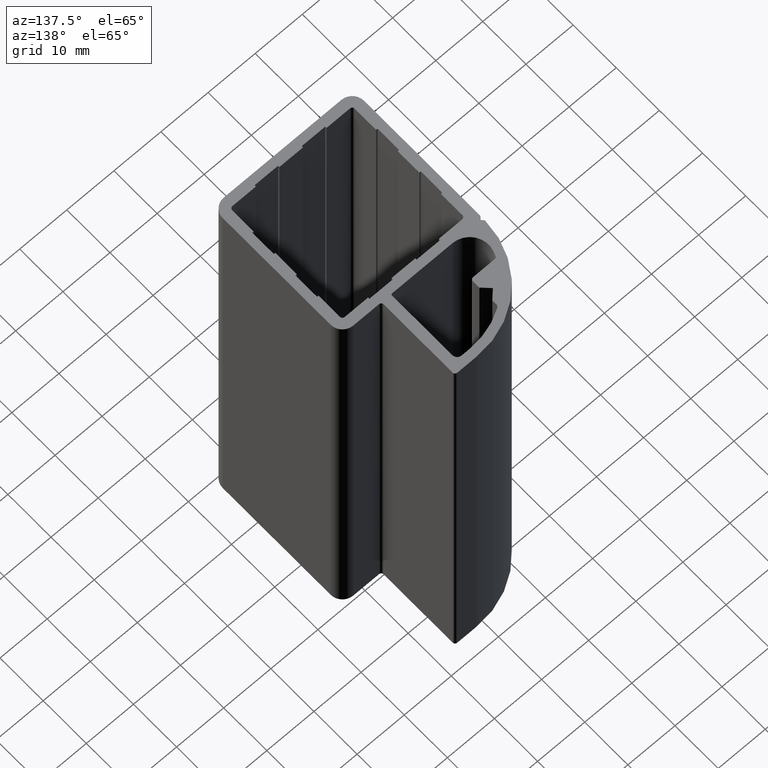
[diagram: clean part render]
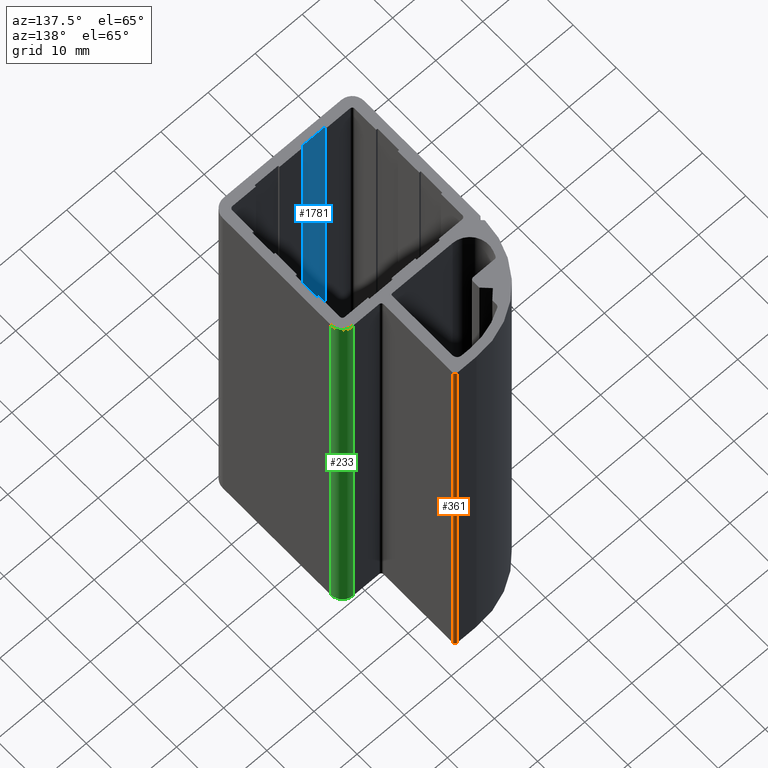
[diagram: same view with three faces highlighted in distinct colors, each labeled with its STEP entity id]
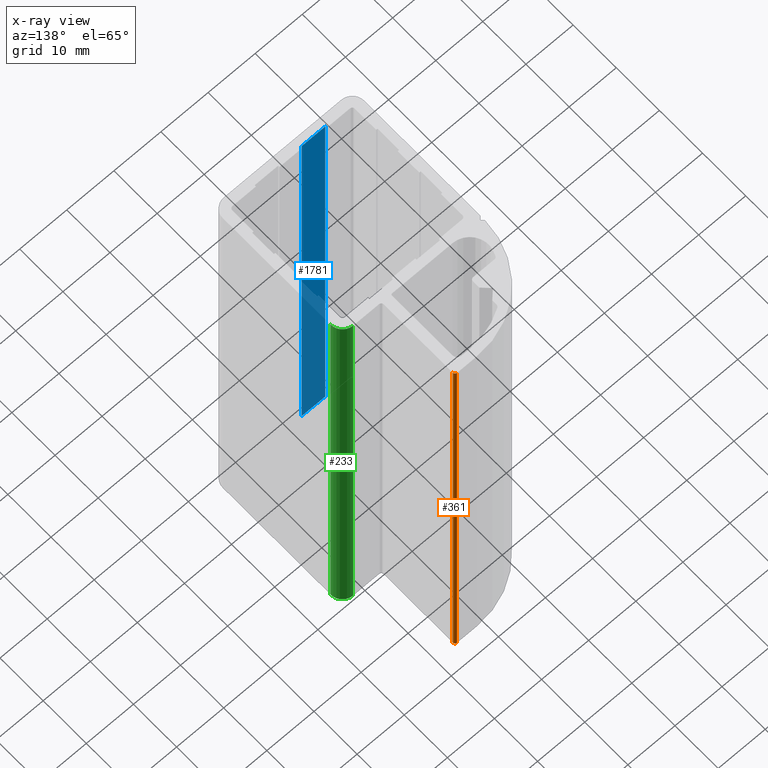
[diagram: x-ray of the same camera — body ghosted, the three highlighted faces saturated]
A machine part, auxiliary view with three faces highlighted in distinct colors.
The next image is the same camera in x-ray (body ghosted, the three faces saturated) — at least one of them is partly hidden behind the body in this view.
Their STEP definitions:

[orange] entity #361 — the highlighted cylindrical surface (edge-blend (fillet) strip) has radius 0.5 mm, axis along (0, 0, 1).
#304=CARTESIAN_POINT('',(6.499999999987267,46.500000000139835,0.0));
#305=VERTEX_POINT('',#304);
#312=CARTESIAN_POINT('',(6.499999999987267,46.500000000139835,100.0));
#313=VERTEX_POINT('',#312);
#314=CARTESIAN_POINT('',(6.499999999987267,46.500000000139835,100.0));
#315=DIRECTION('',(0.0,0.0,-1.0));
#316=VECTOR('',#315,100.0);
#317=LINE('',#314,#316);
#318=EDGE_CURVE('',#313,#305,#317,.T.);
#329=CARTESIAN_POINT('',(5.999999999987267,46.500000000139835,100.0));
#330=DIRECTION('',(0.0,0.0,1.0));
#331=DIRECTION('',(1.0,0.0,0.0));
#332=AXIS2_PLACEMENT_3D('',#329,#330,#331);
#333=CYLINDRICAL_SURFACE('',#332,0.500000000000000);
#334=ORIENTED_EDGE('',*,*,#318,.T.);
#335=CARTESIAN_POINT('',(5.999999999987267,47.000000000139835,0.0));
#336=VERTEX_POINT('',#335);
#337=CARTESIAN_POINT('',(5.999999999987267,46.500000000139835,0.0));
#338=DIRECTION('',(0.0,0.0,1.0));
#339=DIRECTION('',(1.0,0.0,0.0));
#340=AXIS2_PLACEMENT_3D('',#337,#338,#339);
#341=CIRCLE('',#340,0.500000000000000);
#342=EDGE_CURVE('',#305,#336,#341,.T.);
#343=ORIENTED_EDGE('',*,*,#342,.T.);
#344=CARTESIAN_POINT('',(5.999999999987267,47.000000000139835,100.0));
#345=VERTEX_POINT('',#344);
#346=CARTESIAN_POINT('',(5.999999999987267,47.000000000139835,100.0));
#347=DIRECTION('',(0.0,0.0,-1.0));
#348=VECTOR('',#347,100.0);
#349=LINE('',#346,#348);
#350=EDGE_CURVE('',#345,#336,#349,.T.);
#351=ORIENTED_EDGE('',*,*,#350,.F.);
#352=CARTESIAN_POINT('',(5.999999999987267,46.500000000139835,100.0));
#353=DIRECTION('',(0.0,0.0,1.0));
#354=DIRECTION('',(1.0,0.0,0.0));
#355=AXIS2_PLACEMENT_3D('',#352,#353,#354);
#356=CIRCLE('',#355,0.500000000000000);
#357=EDGE_CURVE('',#313,#345,#356,.T.);
#358=ORIENTED_EDGE('',*,*,#357,.F.);
#359=EDGE_LOOP('',(#334,#343,#351,#358));
#360=FACE_OUTER_BOUND('',#359,.T.);
#361=ADVANCED_FACE('',(#360),#333,.T.);

[blue] entity #1781 — the highlighted planar face has unit normal (0, 1, 0).
#625=CARTESIAN_POINT('',(-2.499999999997556,1.699999999997999,100.0));
#626=VERTEX_POINT('',#625);
#633=CARTESIAN_POINT('',(-7.499999999992554,1.699999999997999,100.0));
#634=VERTEX_POINT('',#633);
#635=CARTESIAN_POINT('',(-7.499999999992554,1.699999999997999,100.0));
#636=DIRECTION('',(1.0,0.0,0.0));
#637=VECTOR('',#636,4.999999999994998);
#638=LINE('',#635,#637);
#639=EDGE_CURVE('',#634,#626,#638,.T.);
#1111=CARTESIAN_POINT('',(-7.499999999992554,1.699999999997999,0.0));
#1112=VERTEX_POINT('',#1111);
#1119=CARTESIAN_POINT('',(-2.499999999997556,1.699999999997999,0.0));
#1120=VERTEX_POINT('',#1119);
#1121=CARTESIAN_POINT('',(-7.499999999992554,1.699999999997999,0.0));
#1122=DIRECTION('',(1.0,0.0,0.0));
#1123=VECTOR('',#1122,4.999999999994998);
#1124=LINE('',#1121,#1123);
#1125=EDGE_CURVE('',#1112,#1120,#1124,.T.);
#1754=CARTESIAN_POINT('',(-7.499999999992554,1.699999999997999,100.0));
#1755=DIRECTION('',(0.0,0.0,-1.0));
#1756=VECTOR('',#1755,100.0);
#1757=LINE('',#1754,#1756);
#1758=EDGE_CURVE('',#634,#1112,#1757,.T.);
#1765=CARTESIAN_POINT('',(-7.499999999992554,1.699999999997999,100.0));
#1766=DIRECTION('',(0.0,1.0,0.0));
#1767=DIRECTION('',(1.0,0.0,0.0));
#1768=AXIS2_PLACEMENT_3D('',#1765,#1766,#1767);
#1769=PLANE('',#1768);
#1770=ORIENTED_EDGE('',*,*,#639,.T.);
#1771=CARTESIAN_POINT('',(-2.499999999997556,1.699999999997999,100.0));
#1772=DIRECTION('',(0.0,0.0,-1.0));
#1773=VECTOR('',#1772,100.0);
#1774=LINE('',#1771,#1773);
#1775=EDGE_CURVE('',#626,#1120,#1774,.T.);
#1776=ORIENTED_EDGE('',*,*,#1775,.T.);
#1777=ORIENTED_EDGE('',*,*,#1125,.F.);
#1778=ORIENTED_EDGE('',*,*,#1758,.F.);
#1779=EDGE_LOOP('',(#1770,#1776,#1777,#1778));
#1780=FACE_OUTER_BOUND('',#1779,.T.);
#1781=ADVANCED_FACE('',(#1780),#1769,.T.);

[green] entity #233 — the highlighted cylindrical surface (edge-blend (fillet) strip) has radius 2.5 mm, axis along (0, 0, 1).
#176=CARTESIAN_POINT('',(14.999999999984993,27.499999999972715,0.0));
#177=VERTEX_POINT('',#176);
#184=CARTESIAN_POINT('',(14.999999999984993,27.499999999972715,100.0));
#185=VERTEX_POINT('',#184);
#186=CARTESIAN_POINT('',(14.999999999984993,27.499999999972715,100.0));
#187=DIRECTION('',(0.0,0.0,-1.0));
#188=VECTOR('',#187,100.0);
#189=LINE('',#186,#188);
#190=EDGE_CURVE('',#185,#177,#189,.T.);
#201=CARTESIAN_POINT('',(12.499999999987494,27.500000000142109,100.0));
#202=DIRECTION('',(0.0,0.0,1.0));
#203=DIRECTION('',(1.0,-6.775736E-011,0.0));
#204=AXIS2_PLACEMENT_3D('',#201,#202,#203);
#205=CYLINDRICAL_SURFACE('',#204,2.499999999997556);
#206=ORIENTED_EDGE('',*,*,#190,.T.);
#207=CARTESIAN_POINT('',(12.499999999989768,30.000000000139721,0.0));
#208=VERTEX_POINT('',#207);
#209=CARTESIAN_POINT('',(12.499999999987494,27.500000000142109,0.0));
#210=DIRECTION('',(0.0,0.0,1.0));
#211=DIRECTION('',(1.0,-6.775736E-011,0.0));
#212=AXIS2_PLACEMENT_3D('',#209,#210,#211);
#213=CIRCLE('',#212,2.499999999997556);
#214=EDGE_CURVE('',#177,#208,#213,.T.);
#215=ORIENTED_EDGE('',*,*,#214,.T.);
#216=CARTESIAN_POINT('',(12.499999999989768,30.000000000139721,100.0));
#217=VERTEX_POINT('',#216);
#218=CARTESIAN_POINT('',(12.499999999989768,30.000000000139721,100.0));
#219=DIRECTION('',(0.0,0.0,-1.0));
#220=VECTOR('',#219,100.0);
#221=LINE('',#218,#220);
#222=EDGE_CURVE('',#217,#208,#221,.T.);
#223=ORIENTED_EDGE('',*,*,#222,.F.);
#224=CARTESIAN_POINT('',(12.499999999987494,27.500000000142109,100.0));
#225=DIRECTION('',(0.0,0.0,1.0));
#226=DIRECTION('',(1.0,-6.775736E-011,0.0));
#227=AXIS2_PLACEMENT_3D('',#224,#225,#226);
#228=CIRCLE('',#227,2.499999999997556);
#229=EDGE_CURVE('',#185,#217,#228,.T.);
#230=ORIENTED_EDGE('',*,*,#229,.F.);
#231=EDGE_LOOP('',(#206,#215,#223,#230));
#232=FACE_OUTER_BOUND('',#231,.T.);
#233=ADVANCED_FACE('',(#232),#205,.T.);